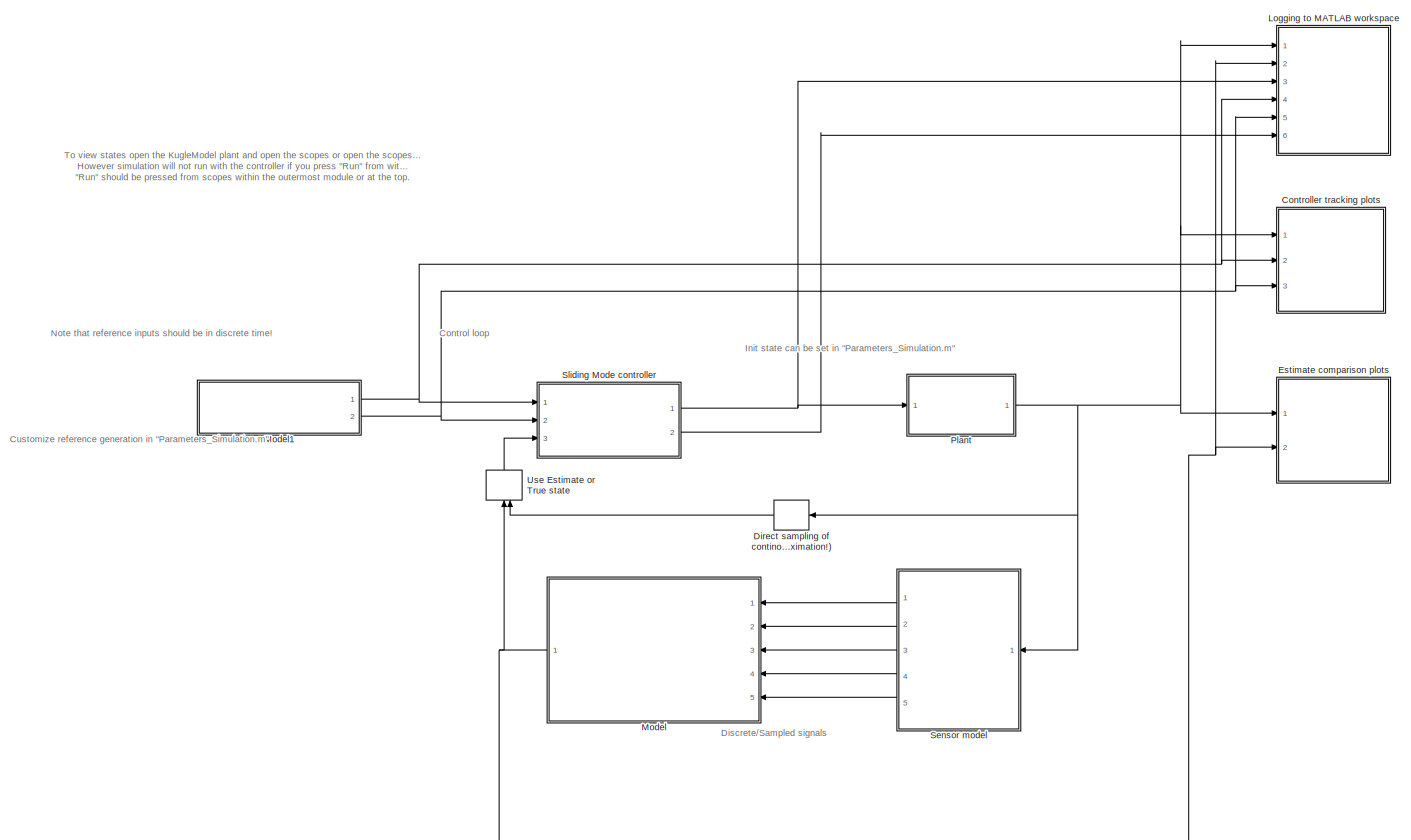
[diagram: root canvas - part 1/1, most of the canvas]
MODEL slx_2238ac2fa8c3
KIND model
CONFIG AbsTol = auto
CONFIG EnableMultiTasking = off
CONFIG FixedStep = 1e-3
CONFIG InitFcn = Parameters_General\nParameters_Simulation\nParameters_Controllers
CONFIG MaxStep = 1e-2
CONFIG MinStep = auto
CONFIG PreLoadFcn = modelDir = fileparts(get_param(bdroot, 'FileName'));\naddpath(fullfile(modelDir,'../Parameters'));\naddpath(fullfile(modelDir,'subsystems'));\n\nParameters_General\nParameters_Simulation\nParameters_Controllers
CONFIG RelTol = 1e-5
CONFIG SampleTimeConstraint = Unconstrained
CONFIG Solver = VariableStepAuto
CONFIG SolverName = VariableStepAuto
CONFIG StartTime = 0.0
CONFIG StopFcn = StructurizeLoggedData
CONFIG StopTime = 20
BLOCK [ModelReference] Controller tracking plots
  ModelNameDialog = TrackingComparison
  ModelReferenceVersion = 1.12
  Ports = [3]
BLOCK [ZeroOrderHold] Direct sampling of continous states (simple//approximation!)
  SampleTime = Ts
BLOCK [ModelReference] Estimate comparison plots
  ModelNameDialog = StatesComparison
  ModelReferenceVersion = 1.9
  Ports = [2]
BLOCK [ModelReference] Logging to MATLAB workspace
  ModelNameDialog = Logging
  ModelReferenceVersion = 1.12
  Ports = [6]
BLOCK [ModelReference] Model
  ModelNameDialog = Estimators
  ModelReferenceVersion = 1.11
  Ports = [5, 1]
BLOCK [ModelReference] Model1
  ModelNameDialog = ReferenceGenerator
  ModelReferenceVersion = 1.7
  Ports = [0, 2]
BLOCK [ModelReference] Plant
  ModelNameDialog = KugleModel
  ModelReferenceVersion = 1.2092
  Ports = [1, 1]
BLOCK [ModelReference] Sensor model
  ModelNameDialog = SensorModels
  ModelReferenceVersion = 1.18
  Ports = [1, 5]
BLOCK [ModelReference] Sliding Mode controller
  ModelNameDialog = SlidingMode
  ModelReferenceVersion = 1.48
  Ports = [3, 2]
BLOCK [ManualSwitch] Use Estimate or True state
  CurrentSetting = 0
ANNOTATION (root): Control loop
ANNOTATION (root): Customize reference generation in "Parameters_Simulation.m"
ANNOTATION (root): Discrete/Sampled signals
ANNOTATION (root): Init state can be set in "Parameters_Simulation.m"
ANNOTATION (root): Note that reference inputs should be in discrete time!
ANNOTATION (root): To view states open the KugleModel plant and open the scopes or open the scopes inside the plot modules on the right. However simulation will not run with the controller if you press "Run" from within the scopes inside any of the modules. "Run" should be pressed from scopes within the outermost module or at the top.
LINE Direct sampling of continous states (simple//approximation!):1 -> Use Estimate or True state:2
NET Model1:1 -> Controller tracking plots:2, Logging to MATLAB workspace:4, Sliding Mode controller:1
NET Model1:2 -> Controller tracking plots:3, Logging to MATLAB workspace:5, Sliding Mode controller:2
NET Model:1 -> Estimate comparison plots:2, Logging to MATLAB workspace:2, Use Estimate or True state:1
NET Plant:1 -> Controller tracking plots:1, Direct sampling of continous states (simple//approximation!):1, Estimate comparison plots:1, Logging to MATLAB workspace:1, Sensor model:1
LINE Sensor model:1 -> Model:1
LINE Sensor model:2 -> Model:2
LINE Sensor model:3 -> Model:3
LINE Sensor model:4 -> Model:4
LINE Sensor model:5 -> Model:5
NET Sliding Mode controller:1 -> Logging to MATLAB workspace:3, Plant:1
LINE Sliding Mode controller:2 -> Logging to MATLAB workspace:6
LINE Use Estimate or True state:1 -> Sliding Mode controller:3
note: NET lines group one-source signal fan-out (src -> all destinations, sorted); 1:1 wires keep LINE
